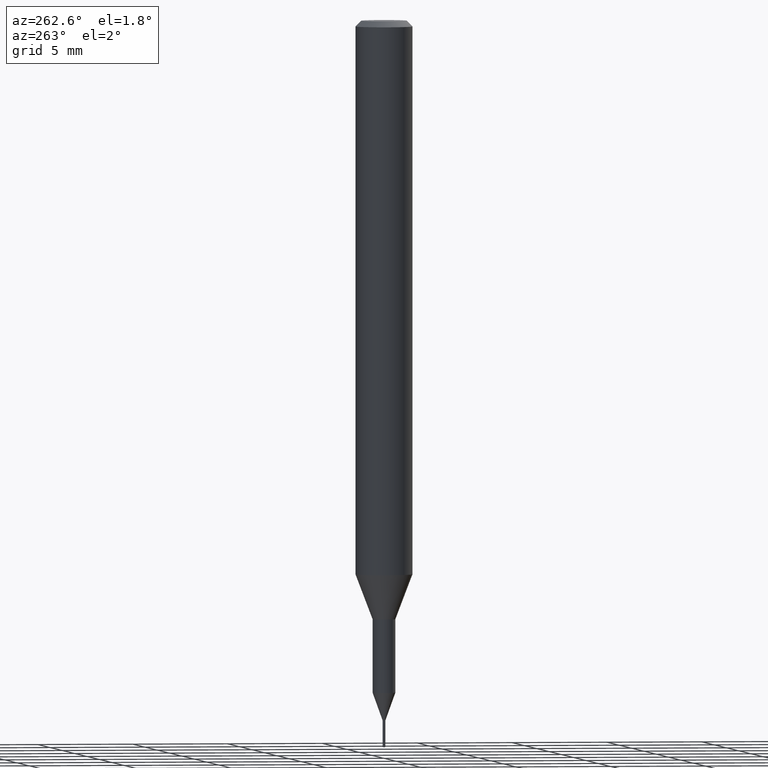
[diagram: clean part render]
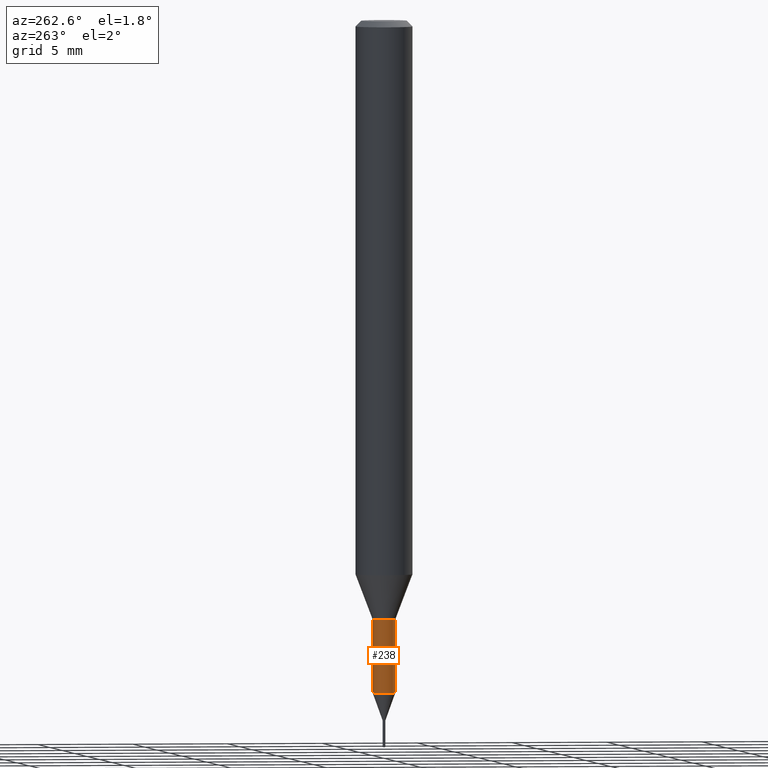
[diagram: same view with one face highlighted and labeled with its STEP entity id]
A machine part, auxiliary view. The second image highlights one B-rep face of the part: STEP entity #238.
In plain terms, the highlighted cylindrical surface (edge-blend (fillet) strip) has radius 0.5999 mm, axis along (-0, -0, 1).
Its self-contained STEP definition (entity closure, byte-faithful):
#168=VERTEX_POINT('',#354);
#196=EDGE_CURVE('',#204,#266,#384,.T.);
#204=VERTEX_POINT('',#393);
#220=VERTEX_POINT('',#409);
#222=EDGE_CURVE('',#204,#168,#411,.T.);
#236=EDGE_CURVE('',#220,#168,#429,.T.);
#238=ADVANCED_FACE('',(#431),#432,.T.);
#266=VERTEX_POINT('',#464);
#268=EDGE_CURVE('',#266,#220,#466,.T.);
#354=CARTESIAN_POINT('',(0.0,0.59995,-35.144));
#384=LINE('',#601,#602);
#393=CARTESIAN_POINT('',(7.34702581975735E-017,-0.59995,-35.144));
#409=CARTESIAN_POINT('',(0.0,0.59995,-31.3));
#411=CIRCLE('',#637,0.59995);
#429=LINE('',#657,#658);
#431=FACE_OUTER_BOUND('',#660,.T.);
#432=CYLINDRICAL_SURFACE('',#661,0.59995);
#464=CARTESIAN_POINT('',(7.34702581975735E-017,-0.59995,-31.3));
#466=CIRCLE('',#706,0.59995);
#601=CARTESIAN_POINT('',(7.34702581975735E-017,-0.59995,-33.222));
#602=VECTOR('',#825,1.0);
#637=AXIS2_PLACEMENT_3D('',#855,#856,#857);
#657=CARTESIAN_POINT('',(-7.34702581975735E-017,0.59995,-33.222));
#658=VECTOR('',#887,1.0);
#660=EDGE_LOOP('',(#889,#890,#891,#892));
#661=AXIS2_PLACEMENT_3D('',#893,#894,#895);
#706=AXIS2_PLACEMENT_3D('',#935,#936,#937);
#825=DIRECTION('',(-0.0,-0.0,1.0));
#855=CARTESIAN_POINT('',(0.0,0.0,-35.144));
#856=DIRECTION('',(0.0,0.0,-1.0));
#857=DIRECTION('',(0.0,1.0,0.0));
#887=DIRECTION('',(0.0,0.0,-1.0));
#889=ORIENTED_EDGE('',*,*,#236,.T.);
#890=ORIENTED_EDGE('',*,*,#222,.F.);
#891=ORIENTED_EDGE('',*,*,#196,.T.);
#892=ORIENTED_EDGE('',*,*,#268,.T.);
#893=CARTESIAN_POINT('',(0.0,0.0,-33.222));
#894=DIRECTION('',(-0.0,-0.0,1.0));
#895=DIRECTION('',(0.0,1.0,0.0));
#935=CARTESIAN_POINT('',(0.0,0.0,-31.3));
#936=DIRECTION('',(0.0,0.0,-1.0));
#937=DIRECTION('',(0.0,1.0,0.0));